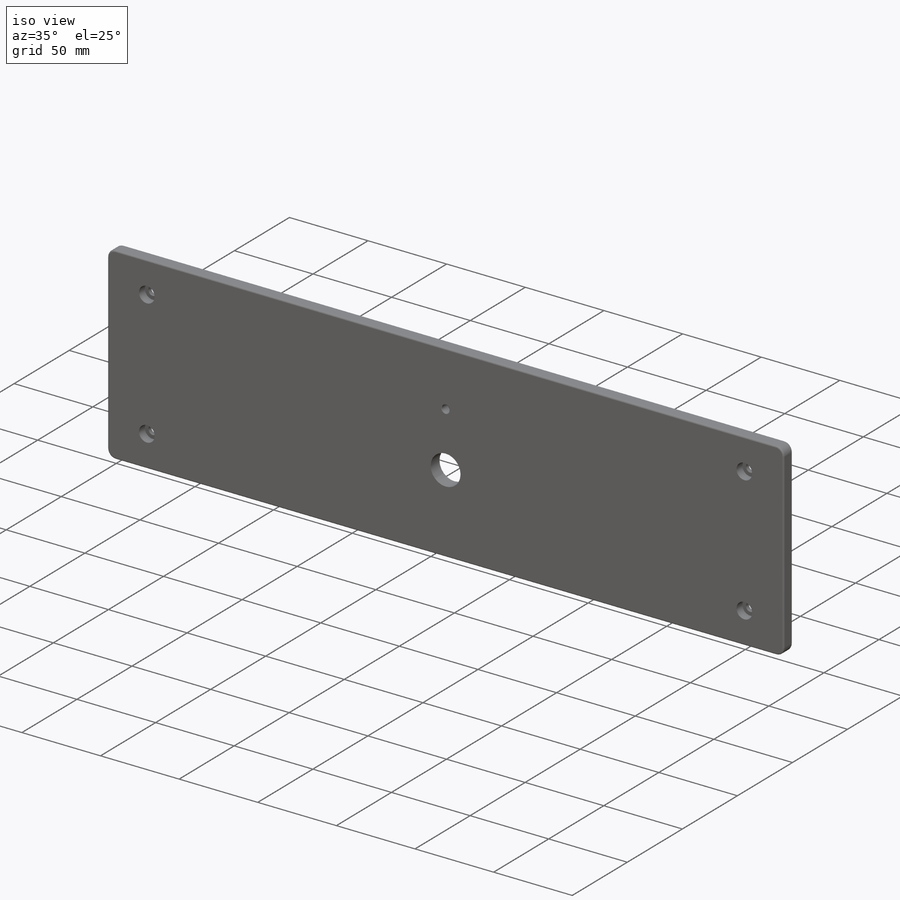
[diagram: iso view]
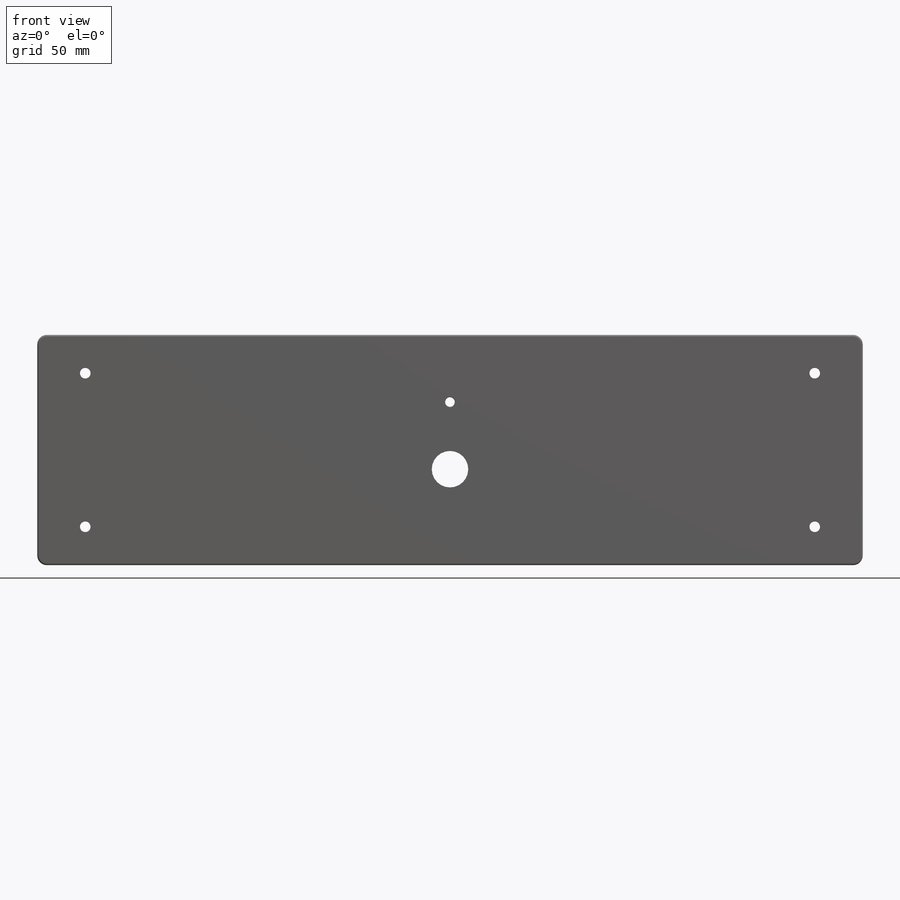
[diagram: front view]
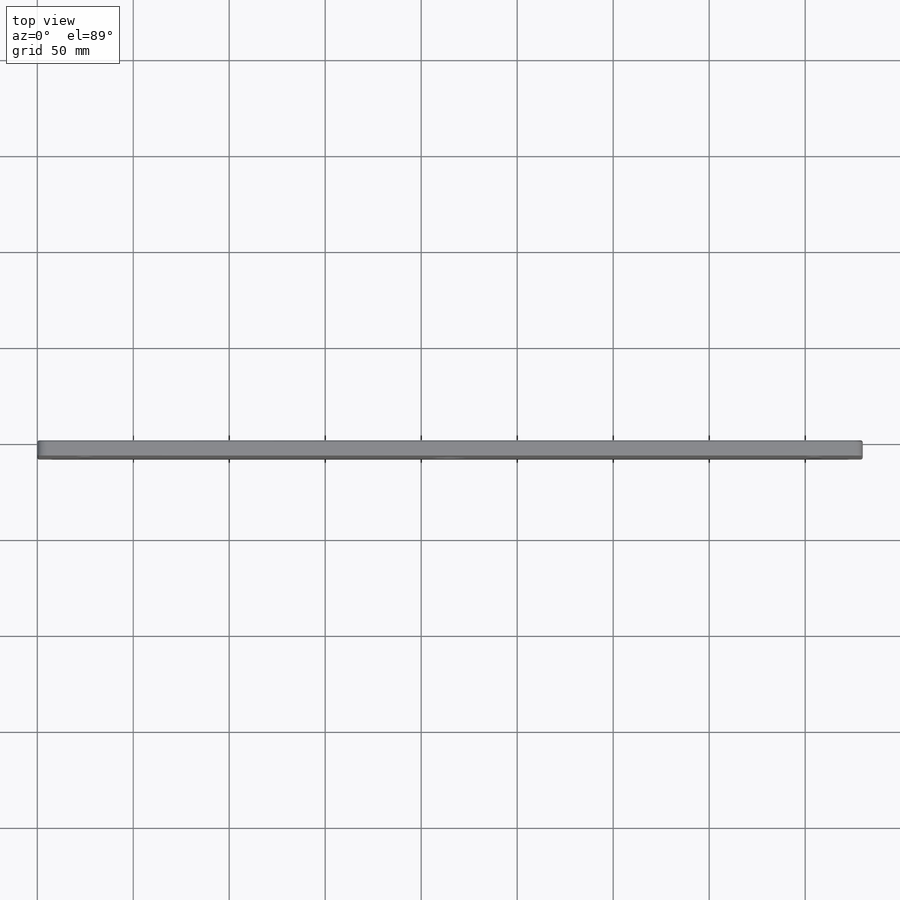
[diagram: top view]
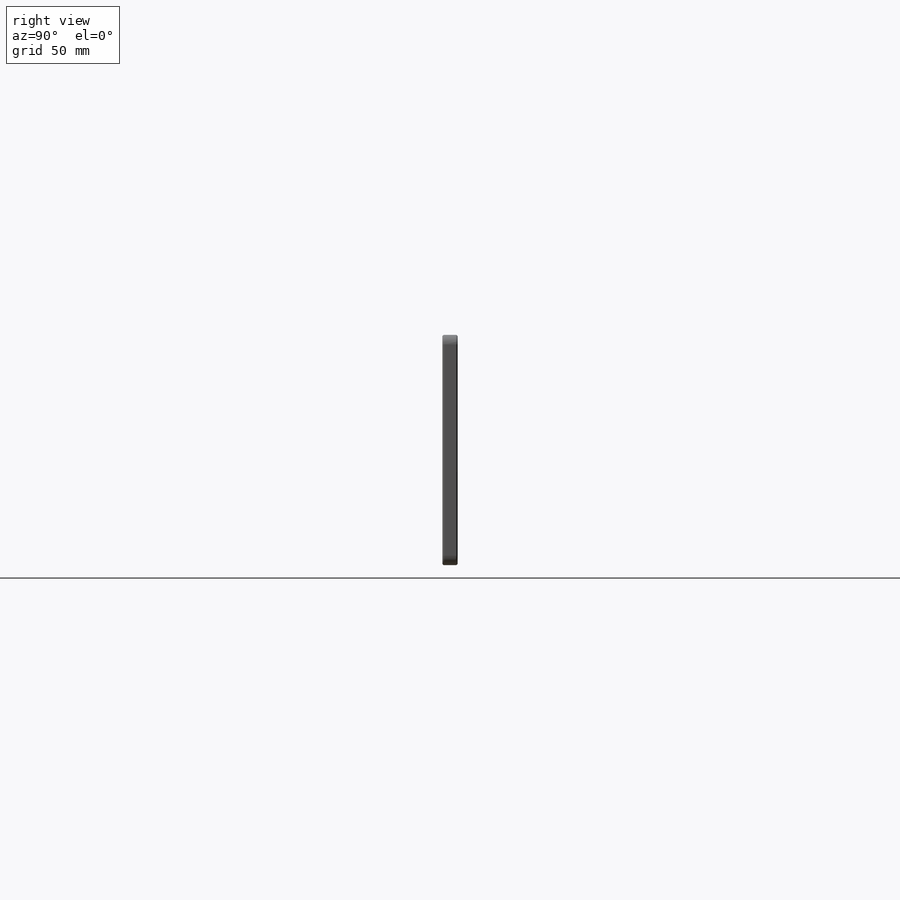
[diagram: right view]
SOLIDWORKS PART (.sldprt)
format: sldprt  version: not decoded by parser v0  size: 616,960 bytes
history: native  units: mm
features: sketch x8, hole x3, fillet x2, material x1, extrude x1, chamfer x1 (+15 scaffold rows collapsed)
feature tree (31):
  scaffold x15  (default folders/planes/origin — collapsed)
  material  "7079 Alloy"
  sketch  "Sketch1"
  extrude  "Extrude1"  Depth=8mm
  fillet  "Fillet1"  Radius=5mm
  fillet  "Fillet2"  Radius=1mm
  sketch  "Sketch2"  dims[D1=24.0mm]
  hole  "Ø5.0 (5) Diameter Hole1"  Diameter=5mm Depth=8mm
  sketch  "3DSketch2"
  sketch  "Sketch5"  dims[hole-wizard template sketch: 60 standard entries collapsed; hole parameters kept: c18.Thru Hole Depth=8.0mm]
  hole  "Ø19.0 (19) Diameter Hole1"  Diameter=19mm Depth=8mm
  sketch  "3DSketch3"
  sketch  "Sketch6"  dims[hole-wizard template sketch: 59 standard entries collapsed; hole parameters kept: c18.Thru Hole Dia.=19.0mm c18.Thru Hole Depth=8.0mm]
  chamfer  "Chamfer1"  Distance=0.25mm Angle=30deg
  hole  "CBORE for M5 Hex Socket Head Cap Screw1"  Diameter=5.5mm Depth=8mm
  sketch  "3DSketch4"
  sketch  "Sketch9"  dims[hole-wizard template sketch: 42 standard entries collapsed; hole parameters kept: c12.Thru Hole Depth=8.0mm c12.C'Bore Dia.=10.0mm c12.C'Bore Depth=5.4mm]
decode coverage: 11 of 15 modeling features carry decoded parameters
note: ~ marks probable driven/reference dimensions
note: suppression state not decoded; provenance and decode notes live in map.json
